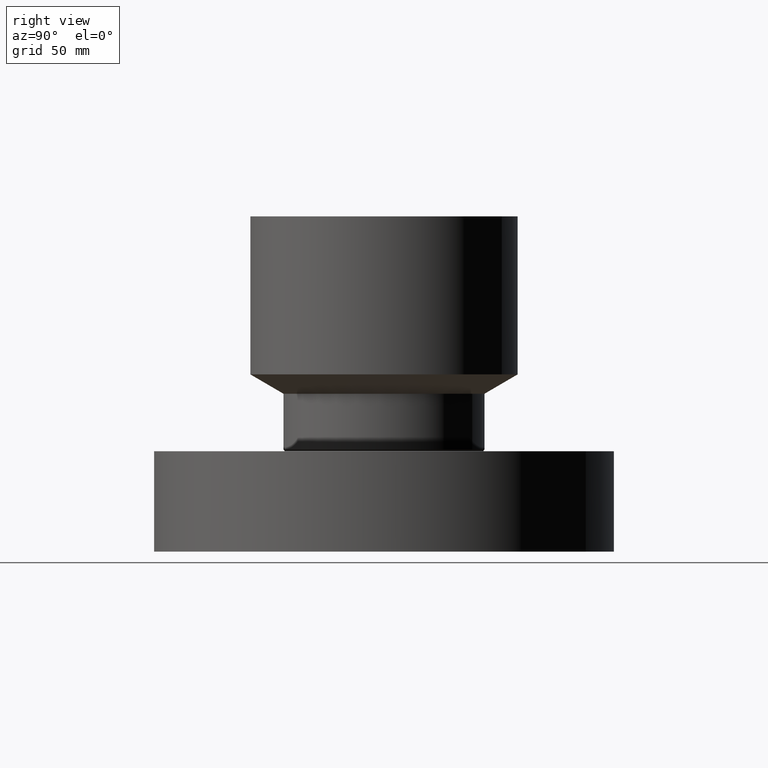
[diagram: clean part render]
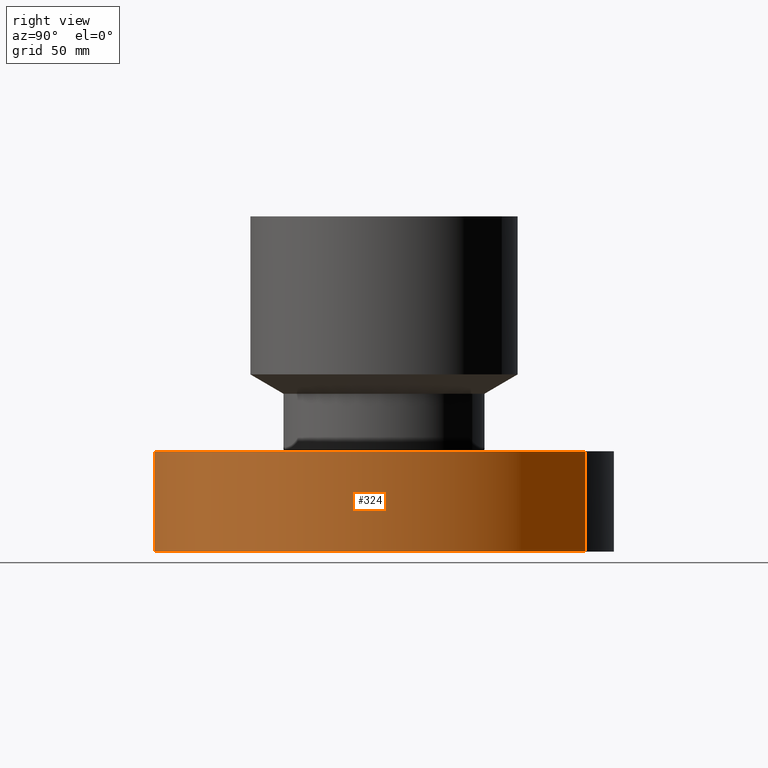
[diagram: same view with one face highlighted and labeled with its STEP entity id]
A machine part, right view. The second image highlights one B-rep face of the part: STEP entity #324.
In plain terms, the highlighted cylindrical surface (partial cylindrical patch) has radius 152.4 mm, axis along (0, 0, -1).
Its self-contained STEP definition (entity closure, byte-faithful):
#99=AXIS2_PLACEMENT_3D('Circle Axis2P3D',#97,#98,$) ;
#285=AXIS2_PLACEMENT_3D('Cylinder Axis2P3D',#282,#283,#284) ;
#315=AXIS2_PLACEMENT_3D('Circle Axis2P3D',#313,#314,$) ;
#97=CARTESIAN_POINT('Axis2P3D Location',(0.,0.,2.62000000001)) ;
#101=CARTESIAN_POINT('Vertex',(2.87655323164,5.26549537136,2.62000000001)) ;
#103=CARTESIAN_POINT('Vertex',(-2.87655323164,-5.26549537136,2.62000000001)) ;
#282=CARTESIAN_POINT('Axis2P3D Location',(0.,0.,4.25000000002)) ;
#291=CARTESIAN_POINT('Vertex',(-2.87655323164,-5.26549537136,1.1189649382E-015)) ;
#293=CARTESIAN_POINT('Vertex',(2.87655323164,5.26549537136,1.1189649382E-015)) ;
#296=CARTESIAN_POINT('Line Origine',(-2.87655323164,-5.26549537136,1.31000000001)) ;
#301=CARTESIAN_POINT('Line Origine',(2.87655323164,5.26549537136,1.31000000001)) ;
#313=CARTESIAN_POINT('Axis2P3D Location',(0.,0.,5.59482469102E-016)) ;
#98=DIRECTION('Axis2P3D Direction',(0.,0.,-0.0393700787402)) ;
#283=DIRECTION('Axis2P3D Direction',(0.,0.,-0.0393700787402)) ;
#284=DIRECTION('Axis2P3D XDirection',(0.0188750212049,0.0345504945626,0.)) ;
#297=DIRECTION('Vector Direction',(0.,0.,-0.0393700787402)) ;
#302=DIRECTION('Vector Direction',(0.,0.,-0.0393700787402)) ;
#314=DIRECTION('Axis2P3D Direction',(0.,0.,-0.0393700787402)) ;
#298=VECTOR('Line Direction',#297,0.0393700787402) ;
#303=VECTOR('Line Direction',#302,0.0393700787402) ;
#319=ORIENTED_EDGE('',*,*,#317,.F.) ;
#320=ORIENTED_EDGE('',*,*,#305,.T.) ;
#321=ORIENTED_EDGE('',*,*,#105,.T.) ;
#322=ORIENTED_EDGE('',*,*,#300,.F.) ;
#324=ADVANCED_FACE('PartBody',(#323),#286,.T.) ;
#100=CIRCLE('generated circle',#99,6.00000000002) ;
#316=CIRCLE('generated circle',#315,6.00000000002) ;
#286=CYLINDRICAL_SURFACE('generated cylinder',#285,6.00000000002) ;
#105=EDGE_CURVE('',#102,#104,#100,.T.) ;
#300=EDGE_CURVE('',#292,#104,#299,.F.) ;
#305=EDGE_CURVE('',#294,#102,#304,.F.) ;
#317=EDGE_CURVE('',#294,#292,#316,.T.) ;
#318=EDGE_LOOP('',(#319,#320,#321,#322)) ;
#323=FACE_OUTER_BOUND('',#318,.T.) ;
#299=LINE('Line',#296,#298) ;
#304=LINE('Line',#301,#303) ;
#102=VERTEX_POINT('',#101) ;
#104=VERTEX_POINT('',#103) ;
#292=VERTEX_POINT('',#291) ;
#294=VERTEX_POINT('',#293) ;